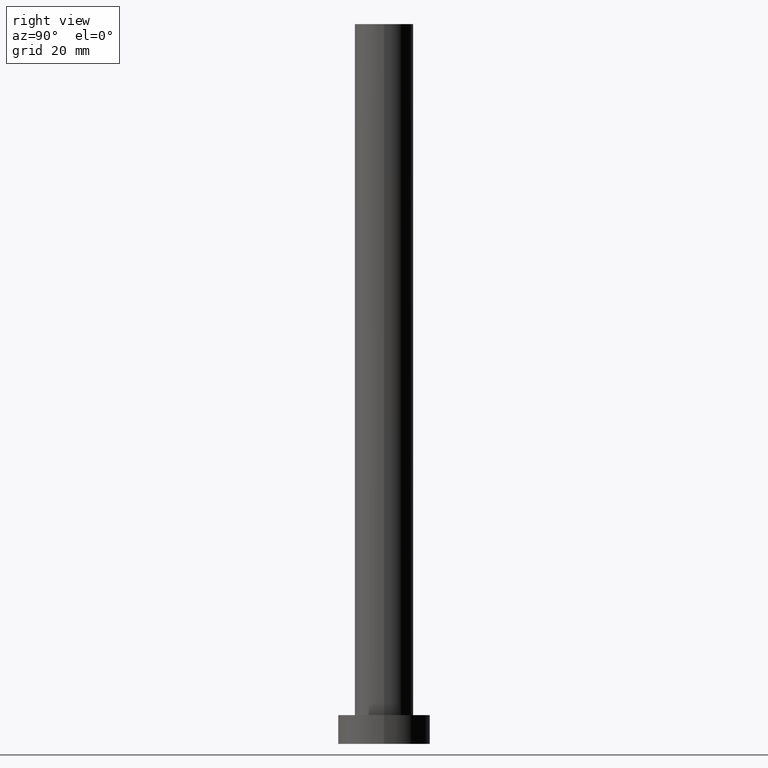
[diagram: clean part render]
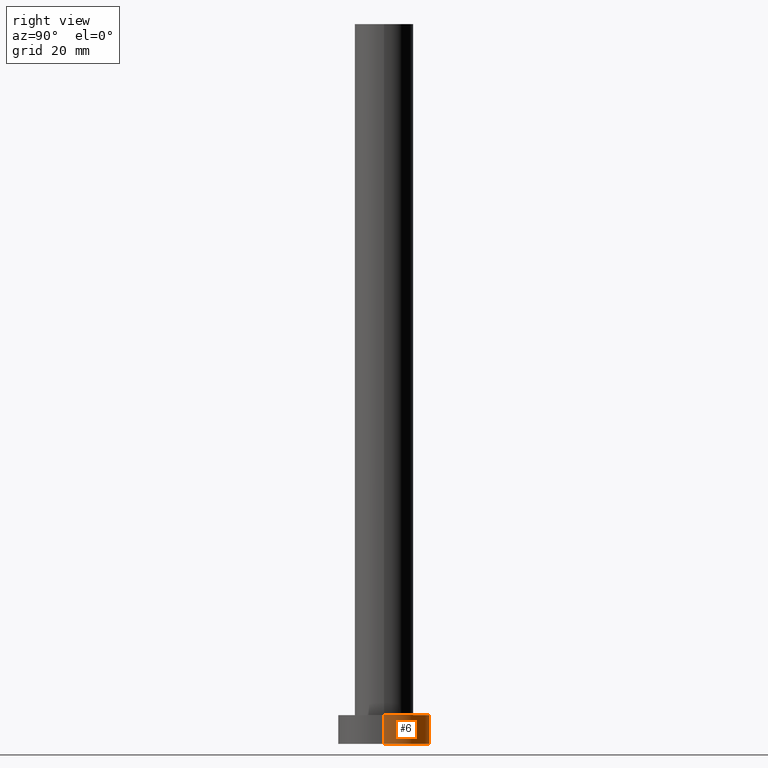
[diagram: same view with one face highlighted and labeled with its STEP entity id]
A machine part, right view. The second image highlights one B-rep face of the part: STEP entity #6.
In plain terms, the highlighted cylindrical surface (partial cylindrical patch) has radius 8 mm, axis along (-0, -0, -1).
Its self-contained STEP definition (entity closure, byte-faithful):
#4 = CARTESIAN_POINT ( 'NONE',  ( 8.000000000000000000, 9.797174393178825657E-16, 5.000000000000000000 ) ) ;
#6 = ADVANCED_FACE ( 'NONE', ( #36 ), #31, .T. ) ;
#19 = EDGE_CURVE ( 'NONE', #34, #42, #172, .T. ) ;
#27 = EDGE_CURVE ( 'NONE', #113, #34, #137, .T. ) ;
#31 = CYLINDRICAL_SURFACE ( 'NONE', #85, 8.000000000000000000 ) ;
#34 = VERTEX_POINT ( 'NONE', #127 ) ;
#35 = ORIENTED_EDGE ( 'NONE', *, *, #19, .F. ) ;
#36 = FACE_OUTER_BOUND ( 'NONE', #116, .T. ) ;
#38 = DIRECTION ( 'NONE',  ( 1.000000000000000000, 0.000000000000000000, 0.000000000000000000 ) ) ;
#42 = VERTEX_POINT ( 'NONE', #149 ) ;
#45 = AXIS2_PLACEMENT_3D ( 'NONE', #179, #47, #201 ) ;
#47 = DIRECTION ( 'NONE',  ( 0.000000000000000000, 0.000000000000000000, 1.000000000000000000 ) ) ;
#57 = VECTOR ( 'NONE', #210, 1000.000000000000000 ) ;
#75 = DIRECTION ( 'NONE',  ( 0.000000000000000000, 0.000000000000000000, 1.000000000000000000 ) ) ;
#77 = DIRECTION ( 'NONE',  ( -0.000000000000000000, -0.000000000000000000, -1.000000000000000000 ) ) ;
#81 = ORIENTED_EDGE ( 'NONE', *, *, #246, .T. ) ;
#85 = AXIS2_PLACEMENT_3D ( 'NONE', #169, #77, #228 ) ;
#113 = VERTEX_POINT ( 'NONE', #237 ) ;
#115 = VERTEX_POINT ( 'NONE', #161 ) ;
#116 = EDGE_LOOP ( 'NONE', ( #243, #81, #134, #35 ) ) ;
#127 = CARTESIAN_POINT ( 'NONE',  ( -8.000000000000000000, 0.000000000000000000, 5.000000000000000000 ) ) ;
#134 = ORIENTED_EDGE ( 'NONE', *, *, #234, .T. ) ;
#137 = CIRCLE ( 'NONE', #195, 8.000000000000000000 ) ;
#149 = CARTESIAN_POINT ( 'NONE',  ( -8.000000000000000000, 0.000000000000000000, 0.000000000000000000 ) ) ;
#161 = CARTESIAN_POINT ( 'NONE',  ( 8.000000000000000000, 9.797174393178825657E-16, 0.000000000000000000 ) ) ;
#168 = VECTOR ( 'NONE', #203, 1000.000000000000000 ) ;
#169 = CARTESIAN_POINT ( 'NONE',  ( 0.000000000000000000, 0.000000000000000000, 5.000000000000000000 ) ) ;
#172 = LINE ( 'NONE', #232, #57 ) ;
#179 = CARTESIAN_POINT ( 'NONE',  ( 0.000000000000000000, 0.000000000000000000, 0.000000000000000000 ) ) ;
#195 = AXIS2_PLACEMENT_3D ( 'NONE', #249, #75, #38 ) ;
#201 = DIRECTION ( 'NONE',  ( 1.000000000000000000, 0.000000000000000000, 0.000000000000000000 ) ) ;
#203 = DIRECTION ( 'NONE',  ( -0.000000000000000000, -0.000000000000000000, -1.000000000000000000 ) ) ;
#210 = DIRECTION ( 'NONE',  ( -0.000000000000000000, -0.000000000000000000, -1.000000000000000000 ) ) ;
#218 = LINE ( 'NONE', #4, #168 ) ;
#228 = DIRECTION ( 'NONE',  ( -1.000000000000000000, 0.000000000000000000, 0.000000000000000000 ) ) ;
#232 = CARTESIAN_POINT ( 'NONE',  ( -8.000000000000000000, 0.000000000000000000, 5.000000000000000000 ) ) ;
#234 = EDGE_CURVE ( 'NONE', #115, #42, #236, .T. ) ;
#236 = CIRCLE ( 'NONE', #45, 8.000000000000000000 ) ;
#237 = CARTESIAN_POINT ( 'NONE',  ( 8.000000000000000000, 9.797174393178825657E-16, 5.000000000000000000 ) ) ;
#243 = ORIENTED_EDGE ( 'NONE', *, *, #27, .F. ) ;
#246 = EDGE_CURVE ( 'NONE', #113, #115, #218, .T. ) ;
#249 = CARTESIAN_POINT ( 'NONE',  ( 0.000000000000000000, 0.000000000000000000, 5.000000000000000000 ) ) ;